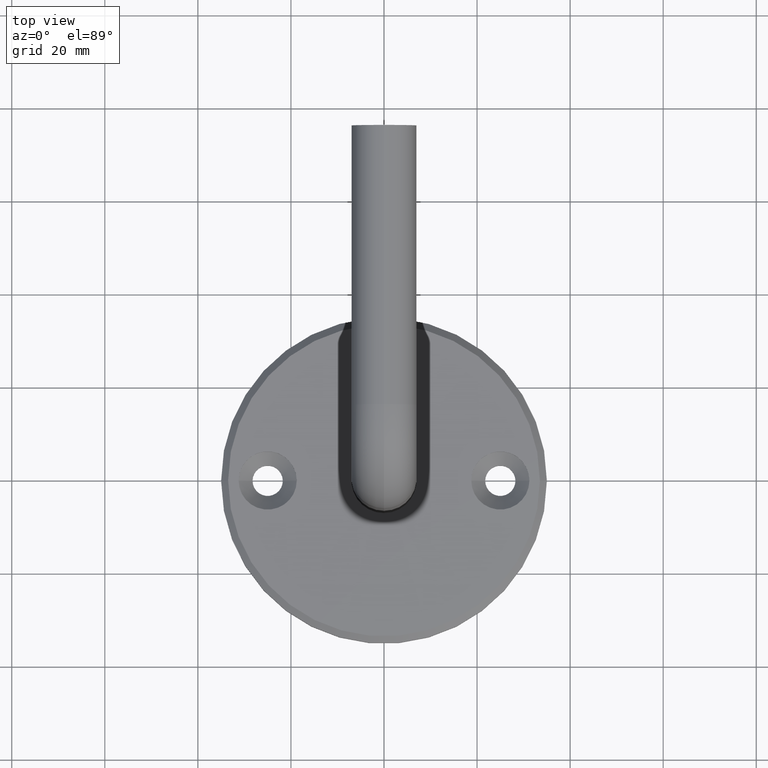
[diagram: clean part render]
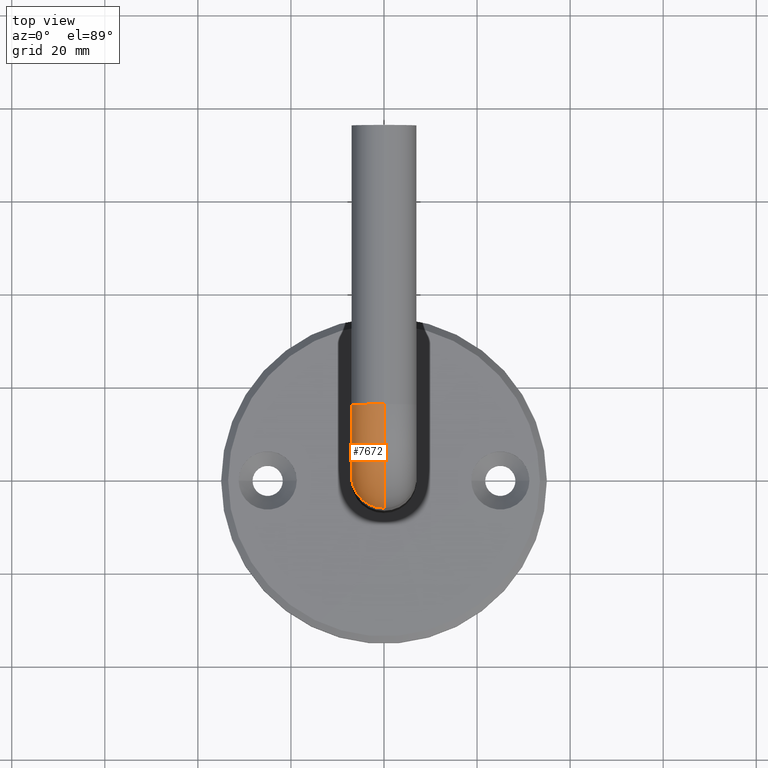
[diagram: same view with one face highlighted and labeled with its STEP entity id]
A machine part, top view. The second image highlights one B-rep face of the part: STEP entity #7672.
In plain terms, the highlighted toroidal blend (fillet) surface has major radius 15 mm and minor (blend) radius 7 mm.
Its self-contained STEP definition (entity closure, byte-faithful):
#118 = ORIENTED_EDGE ( 'NONE', *, *, #2284, .F. ) ;
#845 = CARTESIAN_POINT ( 'NONE',  ( 0.000000000000000000, -1.387778780781445676E-14, -60.00000000000000000 ) ) ;
#910 = DIRECTION ( 'NONE',  ( 0.000000000000000000, 0.000000000000000000, -1.000000000000000000 ) ) ;
#1338 = DIRECTION ( 'NONE',  ( 1.000000000000000000, -0.000000000000000000, -0.000000000000000000 ) ) ;
#2008 = DIRECTION ( 'NONE',  ( 0.000000000000000000, 0.000000000000000000, 1.000000000000000000 ) ) ;
#2284 = EDGE_CURVE ( 'NONE', #10798, #9391, #3928, .T. ) ;
#3050 = EDGE_CURVE ( 'NONE', #11428, #9391, #6907, .T. ) ;
#3312 = DIRECTION ( 'NONE',  ( 0.000000000000000000, 0.000000000000000000, -1.000000000000000000 ) ) ;
#3928 = CIRCLE ( 'NONE', #11912, 8.000000000000007105 ) ;
#4396 = CARTESIAN_POINT ( 'NONE',  ( 0.000000000000000000, 15.00000000000000000, -60.00000000000000000 ) ) ;
#4590 = EDGE_CURVE ( 'NONE', #15360, #11428, #7652, .T. ) ;
#4806 = TOROIDAL_SURFACE ( 'NONE', #11843, 15.00000000000000711, 7.000000000000000888 ) ;
#4935 = DIRECTION ( 'NONE',  ( 0.000000000000000000, 0.000000000000000000, -1.000000000000000000 ) ) ;
#5185 = CARTESIAN_POINT ( 'NONE',  ( 8.572527594031481078E-16, -7.000000000000014211, -60.00000000000000000 ) ) ;
#5720 = DIRECTION ( 'NONE',  ( 1.000000000000000000, -0.000000000000000000, -0.000000000000000000 ) ) ;
#5787 = CARTESIAN_POINT ( 'NONE',  ( -8.572527594031474176E-16, 15.00000000000000000, -60.00000000000000000 ) ) ;
#6125 = AXIS2_PLACEMENT_3D ( 'NONE', #845, #2008, #11695 ) ;
#6185 = DIRECTION ( 'NONE',  ( 1.000000000000000000, 0.000000000000000000, 0.000000000000000000 ) ) ;
#6196 = CARTESIAN_POINT ( 'NONE',  ( 0.000000000000000000, 15.00000000000000000, -60.00000000000000000 ) ) ;
#6283 = ORIENTED_EDGE ( 'NONE', *, *, #15146, .F. ) ;
#6907 = CIRCLE ( 'NONE', #7282, 7.000000000000000888 ) ;
#7183 = AXIS2_PLACEMENT_3D ( 'NONE', #6196, #1338, #4935 ) ;
#7282 = AXIS2_PLACEMENT_3D ( 'NONE', #7598, #7545, #6185 ) ;
#7545 = DIRECTION ( 'NONE',  ( 0.000000000000000000, -1.000000000000000000, -2.312964634635742957E-16 ) ) ;
#7598 = CARTESIAN_POINT ( 'NONE',  ( 0.000000000000000000, 15.00000000000000000, -75.00000000000000000 ) ) ;
#7652 = CIRCLE ( 'NONE', #7183, 22.00000000000000711 ) ;
#7672 = ADVANCED_FACE ( 'NONE', ( #8981 ), #4806, .T. ) ;
#8435 = CARTESIAN_POINT ( 'NONE',  ( 0.000000000000000000, 6.999999999999987566, -60.00000000000000000 ) ) ;
#8842 = CIRCLE ( 'NONE', #6125, 7.000000000000000888 ) ;
#8981 = FACE_OUTER_BOUND ( 'NONE', #14410, .T. ) ;
#8987 = ORIENTED_EDGE ( 'NONE', *, *, #4590, .T. ) ;
#9274 = DIRECTION ( 'NONE',  ( 1.000000000000000000, -0.000000000000000000, -0.000000000000000000 ) ) ;
#9391 = VERTEX_POINT ( 'NONE', #13623 ) ;
#9926 = ORIENTED_EDGE ( 'NONE', *, *, #3050, .T. ) ;
#10382 = CARTESIAN_POINT ( 'NONE',  ( 8.572527594031467273E-16, 15.00000000000000178, -82.00000000000000000 ) ) ;
#10798 = VERTEX_POINT ( 'NONE', #8435 ) ;
#11428 = VERTEX_POINT ( 'NONE', #10382 ) ;
#11695 = DIRECTION ( 'NONE',  ( 1.000000000000000000, 0.000000000000000000, 0.000000000000000000 ) ) ;
#11843 = AXIS2_PLACEMENT_3D ( 'NONE', #4396, #5720, #910 ) ;
#11912 = AXIS2_PLACEMENT_3D ( 'NONE', #5787, #9274, #3312 ) ;
#13623 = CARTESIAN_POINT ( 'NONE',  ( 0.000000000000000000, 14.99999999999999822, -67.99999999999998579 ) ) ;
#14410 = EDGE_LOOP ( 'NONE', ( #6283, #8987, #9926, #118 ) ) ;
#15146 = EDGE_CURVE ( 'NONE', #15360, #10798, #8842, .T. ) ;
#15360 = VERTEX_POINT ( 'NONE', #5185 ) ;